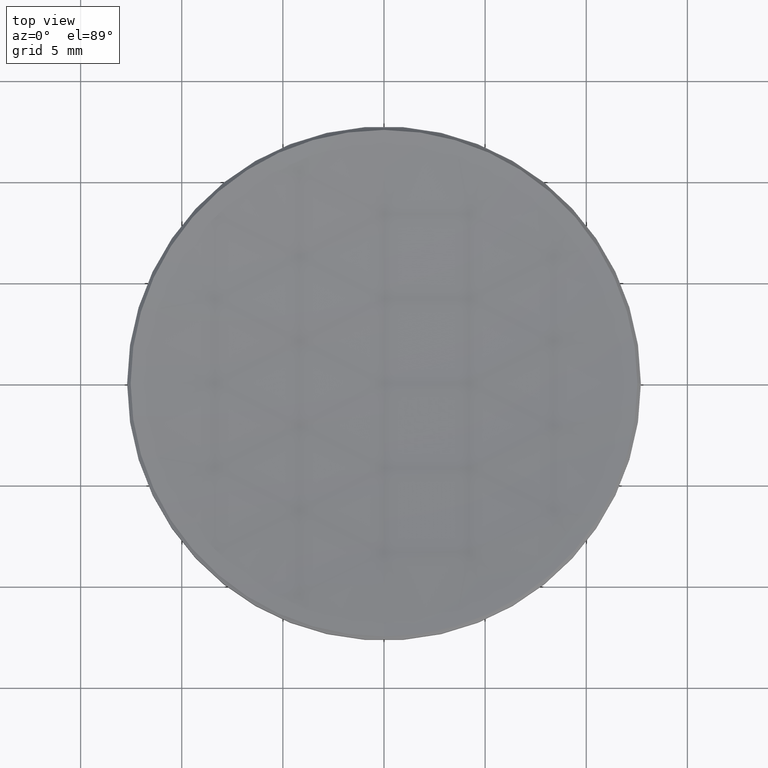
[diagram: clean part render]
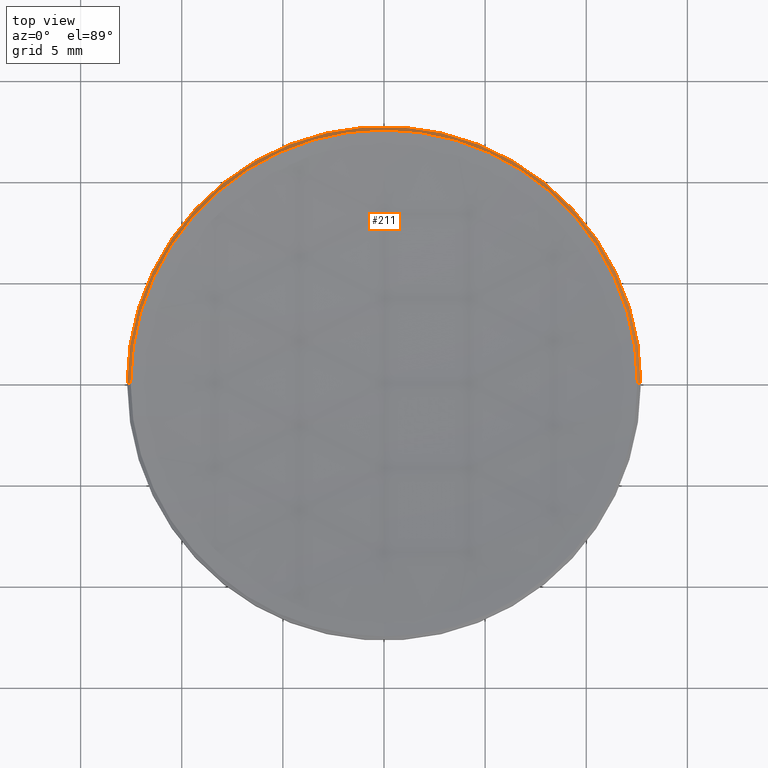
[diagram: same view with one face highlighted and labeled with its STEP entity id]
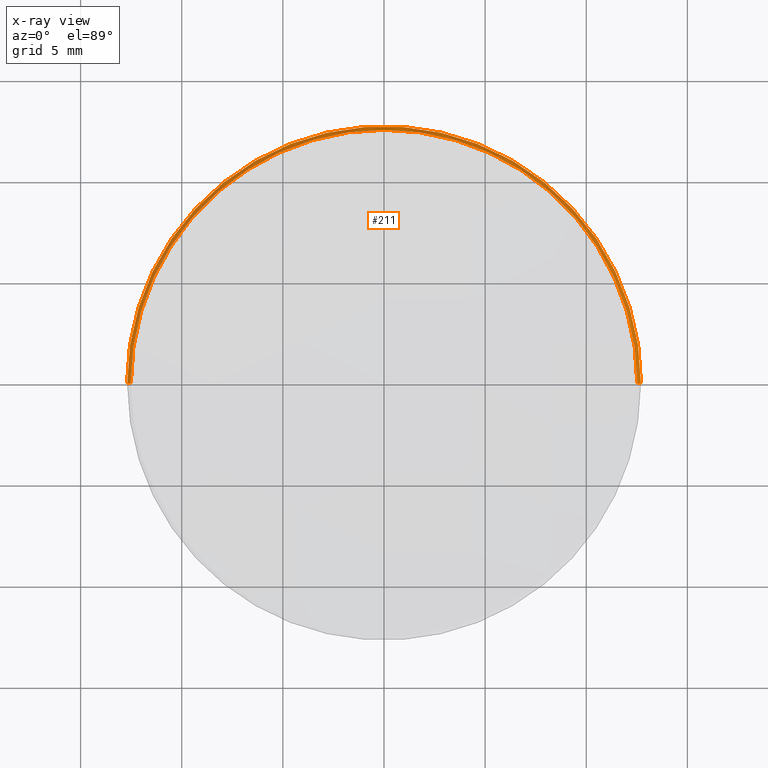
[diagram: x-ray of the same camera — body ghosted, the highlighted face saturated]
A machine part, top view. The second image highlights one B-rep face of the part: STEP entity #211.
The next image is the same camera in x-ray: the body ghosted, the highlighted face saturated — about 0% of this face is hidden behind the body in this view.
In plain terms, the highlighted conical surface has half-angle 45 deg.
Its self-contained STEP definition (entity closure, byte-faithful):
#4 = AXIS2_PLACEMENT_3D ( 'NONE', #67, #183, #42 ) ;
#15 = CARTESIAN_POINT ( 'NONE',  ( 0.000000000000000000, 0.000000000000000000, 5.973125799162120941 ) ) ;
#16 = FACE_OUTER_BOUND ( 'NONE', #78, .T. ) ;
#19 = DIRECTION ( 'NONE',  ( -1.000000000000000000, 0.000000000000000000, 0.000000000000000000 ) ) ;
#21 = DIRECTION ( 'NONE',  ( 1.000000000000000000, 0.000000000000000000, 0.000000000000000000 ) ) ;
#25 = VERTEX_POINT ( 'NONE', #260 ) ;
#28 = CIRCLE ( 'NONE', #197, 12.52687420083785419 ) ;
#38 = DIRECTION ( 'NONE',  ( -0.000000000000000000, -0.000000000000000000, 1.000000000000000000 ) ) ;
#42 = DIRECTION ( 'NONE',  ( 1.000000000000000000, 0.000000000000000000, 0.000000000000000000 ) ) ;
#60 = CARTESIAN_POINT ( 'NONE',  ( 12.69999999999999929, 1.555301434917138433E-15, 5.799999999999999822 ) ) ;
#67 = CARTESIAN_POINT ( 'NONE',  ( 0.000000000000000000, 0.000000000000000000, 5.799999999999999822 ) ) ;
#73 = VERTEX_POINT ( 'NONE', #148 ) ;
#78 = EDGE_LOOP ( 'NONE', ( #122, #96, #281, #317, #252 ) ) ;
#80 = CIRCLE ( 'NONE', #294, 12.52687420083785419 ) ;
#87 = EDGE_CURVE ( 'NONE', #73, #25, #28, .T. ) ;
#88 = DIRECTION ( 'NONE',  ( 0.000000000000000000, 0.000000000000000000, -1.000000000000000000 ) ) ;
#96 = ORIENTED_EDGE ( 'NONE', *, *, #182, .T. ) ;
#110 = DIRECTION ( 'NONE',  ( -0.000000000000000000, -0.000000000000000000, 1.000000000000000000 ) ) ;
#112 = CARTESIAN_POINT ( 'NONE',  ( 0.000000000000000000, 0.000000000000000000, 5.973125799162135152 ) ) ;
#118 = CIRCLE ( 'NONE', #4, 12.69999999999999929 ) ;
#122 = ORIENTED_EDGE ( 'NONE', *, *, #275, .F. ) ;
#134 = AXIS2_PLACEMENT_3D ( 'NONE', #112, #88, #19 ) ;
#140 = VERTEX_POINT ( 'NONE', #60 ) ;
#143 = VECTOR ( 'NONE', #325, 1000.000000000000000 ) ;
#148 = CARTESIAN_POINT ( 'NONE',  ( 0.000000000000000000, 12.52687420083781511, 5.973125799162120941 ) ) ;
#172 = DIRECTION ( 'NONE',  ( 1.000000000000000000, 0.000000000000000000, 0.000000000000000000 ) ) ;
#181 = CONICAL_SURFACE ( 'NONE', #134, 12.52687420083785597, 0.7853981633974733700 ) ;
#182 = EDGE_CURVE ( 'NONE', #225, #140, #239, .T. ) ;
#183 = DIRECTION ( 'NONE',  ( 0.000000000000000000, 0.000000000000000000, -1.000000000000000000 ) ) ;
#191 = EDGE_CURVE ( 'NONE', #223, #140, #118, .T. ) ;
#197 = AXIS2_PLACEMENT_3D ( 'NONE', #203, #38, #172 ) ;
#203 = CARTESIAN_POINT ( 'NONE',  ( 0.000000000000000000, 0.000000000000000000, 5.973125799162120941 ) ) ;
#211 = ADVANCED_FACE ( 'NONE', ( #16 ), #181, .T. ) ;
#212 = DIRECTION ( 'NONE',  ( -0.7071067811865652253, 0.000000000000000000, -0.7071067811865298092 ) ) ;
#213 = CARTESIAN_POINT ( 'NONE',  ( -12.69999999999999929, 0.000000000000000000, 5.799999999999999822 ) ) ;
#215 = LINE ( 'NONE', #302, #326 ) ;
#223 = VERTEX_POINT ( 'NONE', #213 ) ;
#225 = VERTEX_POINT ( 'NONE', #319 ) ;
#239 = LINE ( 'NONE', #245, #143 ) ;
#244 = EDGE_CURVE ( 'NONE', #25, #223, #215, .T. ) ;
#245 = CARTESIAN_POINT ( 'NONE',  ( 12.52687420083785597, 1.534099639337763779E-15, 5.973125799162135152 ) ) ;
#252 = ORIENTED_EDGE ( 'NONE', *, *, #87, .F. ) ;
#260 = CARTESIAN_POINT ( 'NONE',  ( -12.52687420083785419, 0.000000000000000000, 5.973125799162120941 ) ) ;
#275 = EDGE_CURVE ( 'NONE', #225, #73, #80, .T. ) ;
#281 = ORIENTED_EDGE ( 'NONE', *, *, #191, .F. ) ;
#294 = AXIS2_PLACEMENT_3D ( 'NONE', #15, #110, #21 ) ;
#302 = CARTESIAN_POINT ( 'NONE',  ( -12.52687420083785597, 0.000000000000000000, 5.973125799162135152 ) ) ;
#317 = ORIENTED_EDGE ( 'NONE', *, *, #244, .F. ) ;
#319 = CARTESIAN_POINT ( 'NONE',  ( 12.52687420083785419, 1.544700537127451106E-15, 5.973125799162120941 ) ) ;
#325 = DIRECTION ( 'NONE',  ( 0.7071067811865652253, 8.659560562355149795E-17, -0.7071067811865298092 ) ) ;
#326 = VECTOR ( 'NONE', #212, 1000.000000000000000 ) ;